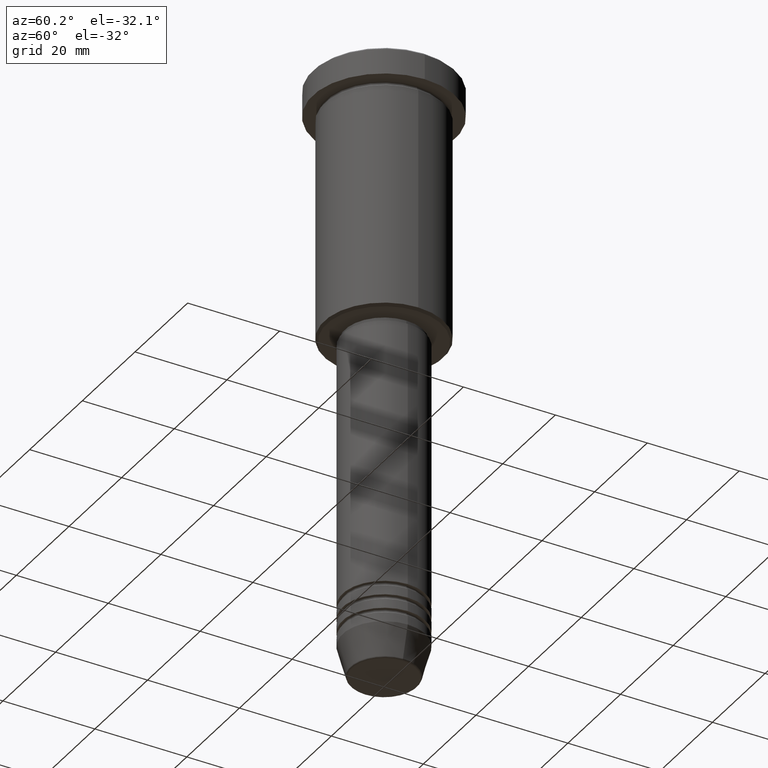
[diagram: clean part render]
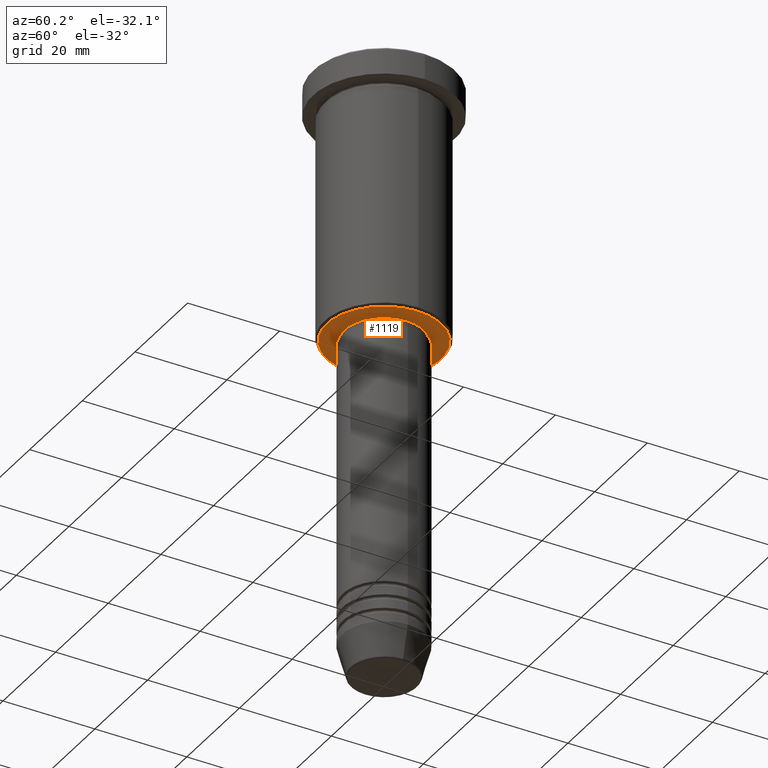
[diagram: same view with one face highlighted and labeled with its STEP entity id]
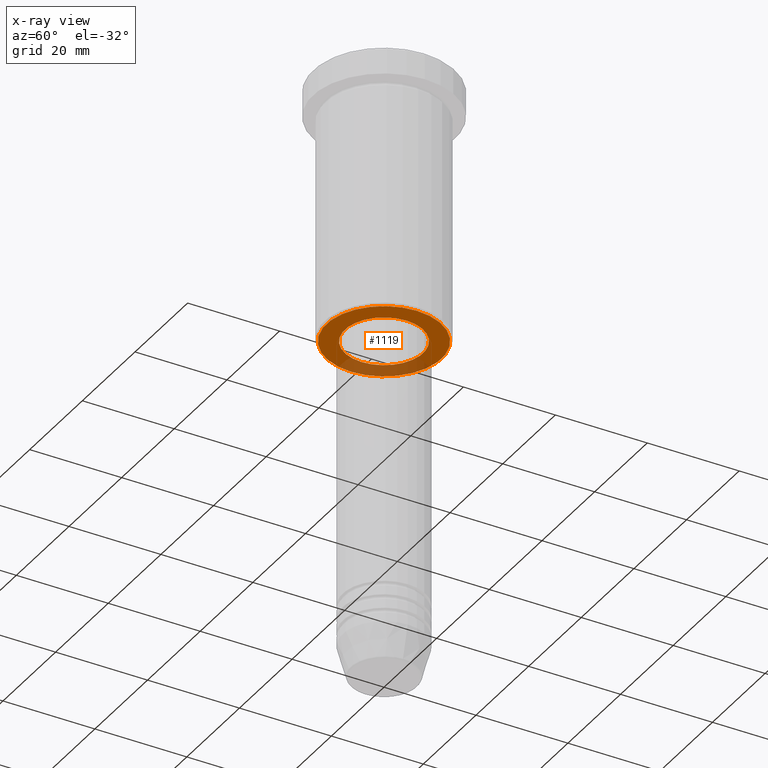
[diagram: x-ray of the same camera — body ghosted, the highlighted face saturated]
A machine part, auxiliary view. The second image highlights one B-rep face of the part: STEP entity #1119.
The next image is the same camera in x-ray: the body ghosted, the highlighted face saturated — about 25% of this face is hidden behind the body in this view.
In plain terms, the highlighted planar face has unit normal (0, 0, -1).
Its self-contained STEP definition (entity closure, byte-faithful):
#26 = VERTEX_POINT ( 'NONE', #1140 ) ;
#83 = DIRECTION ( 'NONE',  ( 0.000000000000000000, 0.000000000000000000, -1.000000000000000000 ) ) ;
#109 = AXIS2_PLACEMENT_3D ( 'NONE', #226, #593, #236 ) ;
#146 = EDGE_LOOP ( 'NONE', ( #295, #1055 ) ) ;
#191 = PLANE ( 'NONE',  #1065 ) ;
#210 = VERTEX_POINT ( 'NONE', #925 ) ;
#226 = CARTESIAN_POINT ( 'NONE',  ( 0.000000000000000000, 0.000000000000000000, -55.99999999999999289 ) ) ;
#231 = CIRCLE ( 'NONE', #439, 8.499999999999998224 ) ;
#236 = DIRECTION ( 'NONE',  ( -1.000000000000000000, 0.000000000000000000, 0.000000000000000000 ) ) ;
#295 = ORIENTED_EDGE ( 'NONE', *, *, #472, .T. ) ;
#313 = CARTESIAN_POINT ( 'NONE',  ( 0.000000000000000000, 0.000000000000000000, -55.99999999999999289 ) ) ;
#331 = DIRECTION ( 'NONE',  ( 1.000000000000000000, 0.000000000000000000, 0.000000000000000000 ) ) ;
#411 = EDGE_CURVE ( 'NONE', #1114, #26, #813, .T. ) ;
#439 = AXIS2_PLACEMENT_3D ( 'NONE', #696, #699, #331 ) ;
#448 = EDGE_CURVE ( 'NONE', #210, #565, #457, .T. ) ;
#457 = CIRCLE ( 'NONE', #109, 12.49999999999996980 ) ;
#472 = EDGE_CURVE ( 'NONE', #565, #210, #984, .T. ) ;
#491 = DIRECTION ( 'NONE',  ( 1.000000000000000000, 0.000000000000000000, 0.000000000000000000 ) ) ;
#545 = FACE_OUTER_BOUND ( 'NONE', #146, .T. ) ;
#565 = VERTEX_POINT ( 'NONE', #874 ) ;
#593 = DIRECTION ( 'NONE',  ( 0.000000000000000000, 0.000000000000000000, -1.000000000000000000 ) ) ;
#594 = AXIS2_PLACEMENT_3D ( 'NONE', #313, #676, #953 ) ;
#676 = DIRECTION ( 'NONE',  ( 0.000000000000000000, 0.000000000000000000, -1.000000000000000000 ) ) ;
#696 = CARTESIAN_POINT ( 'NONE',  ( 0.000000000000000000, 0.000000000000000000, -55.99999999999999289 ) ) ;
#699 = DIRECTION ( 'NONE',  ( -0.000000000000000000, -0.000000000000000000, 1.000000000000000000 ) ) ;
#715 = FACE_BOUND ( 'NONE', #743, .T. ) ;
#726 = CARTESIAN_POINT ( 'NONE',  ( -8.499999999999998224, 1.040949779275249943E-15, -55.99999999999999289 ) ) ;
#743 = EDGE_LOOP ( 'NONE', ( #1163, #843 ) ) ;
#763 = DIRECTION ( 'NONE',  ( -0.000000000000000000, -0.000000000000000000, 1.000000000000000000 ) ) ;
#813 = CIRCLE ( 'NONE', #1123, 8.499999999999998224 ) ;
#843 = ORIENTED_EDGE ( 'NONE', *, *, #411, .T. ) ;
#874 = CARTESIAN_POINT ( 'NONE',  ( 12.49999999999996980, 0.000000000000000000, -55.99999999999999289 ) ) ;
#925 = CARTESIAN_POINT ( 'NONE',  ( -12.49999999999996980, 1.561424668912873336E-15, -55.99999999999999289 ) ) ;
#953 = DIRECTION ( 'NONE',  ( -1.000000000000000000, 0.000000000000000000, 0.000000000000000000 ) ) ;
#984 = CIRCLE ( 'NONE', #594, 12.49999999999996980 ) ;
#1034 = EDGE_CURVE ( 'NONE', #26, #1114, #231, .T. ) ;
#1055 = ORIENTED_EDGE ( 'NONE', *, *, #448, .T. ) ;
#1065 = AXIS2_PLACEMENT_3D ( 'NONE', #1105, #83, #1091 ) ;
#1091 = DIRECTION ( 'NONE',  ( -1.000000000000000000, 0.000000000000000000, -0.000000000000000000 ) ) ;
#1105 = CARTESIAN_POINT ( 'NONE',  ( 0.000000000000000000, 13.00000000000000000, -55.99999999999999289 ) ) ;
#1114 = VERTEX_POINT ( 'NONE', #726 ) ;
#1119 = ADVANCED_FACE ( 'NONE', ( #545, #715 ), #191, .T. ) ;
#1123 = AXIS2_PLACEMENT_3D ( 'NONE', #1143, #763, #491 ) ;
#1140 = CARTESIAN_POINT ( 'NONE',  ( 8.499999999999998224, 0.000000000000000000, -55.99999999999999289 ) ) ;
#1143 = CARTESIAN_POINT ( 'NONE',  ( 0.000000000000000000, 0.000000000000000000, -55.99999999999999289 ) ) ;
#1163 = ORIENTED_EDGE ( 'NONE', *, *, #1034, .T. ) ;